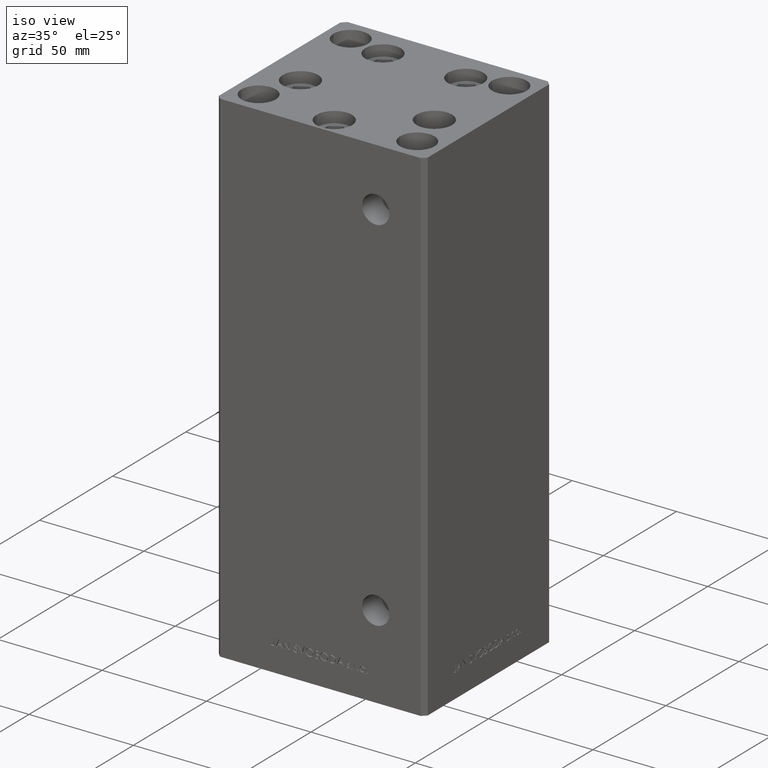
[diagram: clean part render]
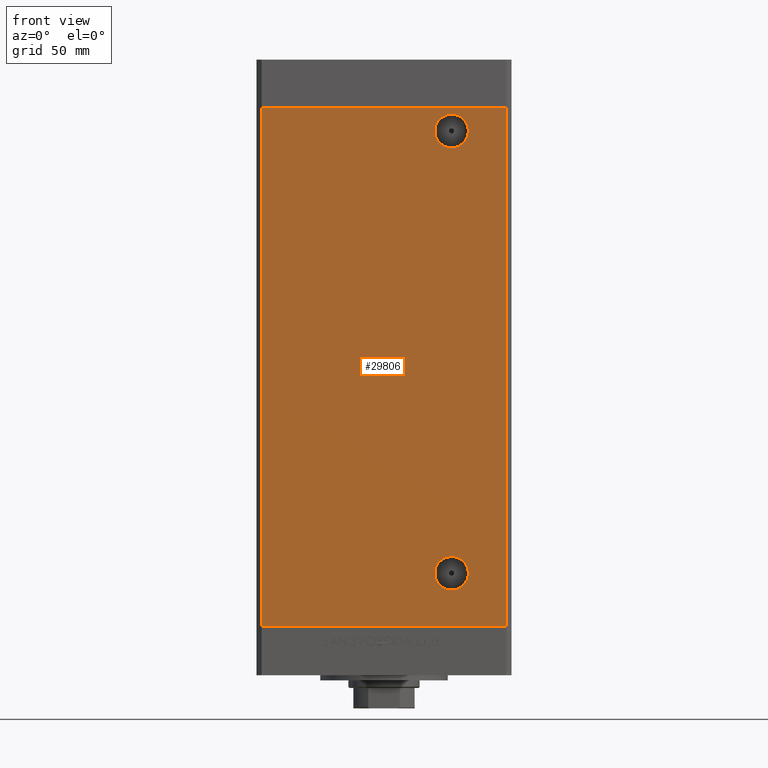
[diagram: tour spotlight — one face highlighted and labeled with its STEP entity id]
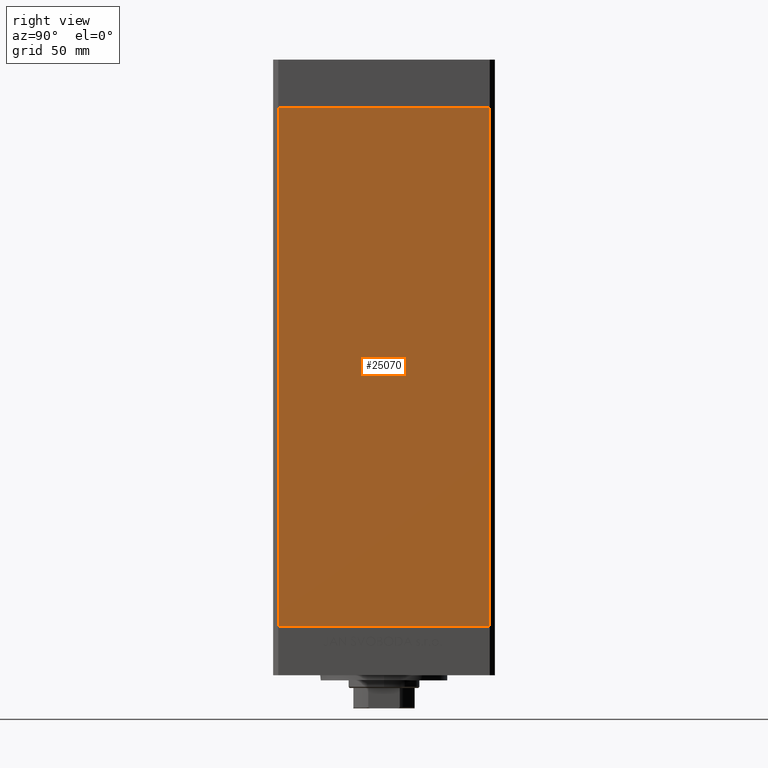
[diagram: tour spotlight — one face highlighted and labeled with its STEP entity id]
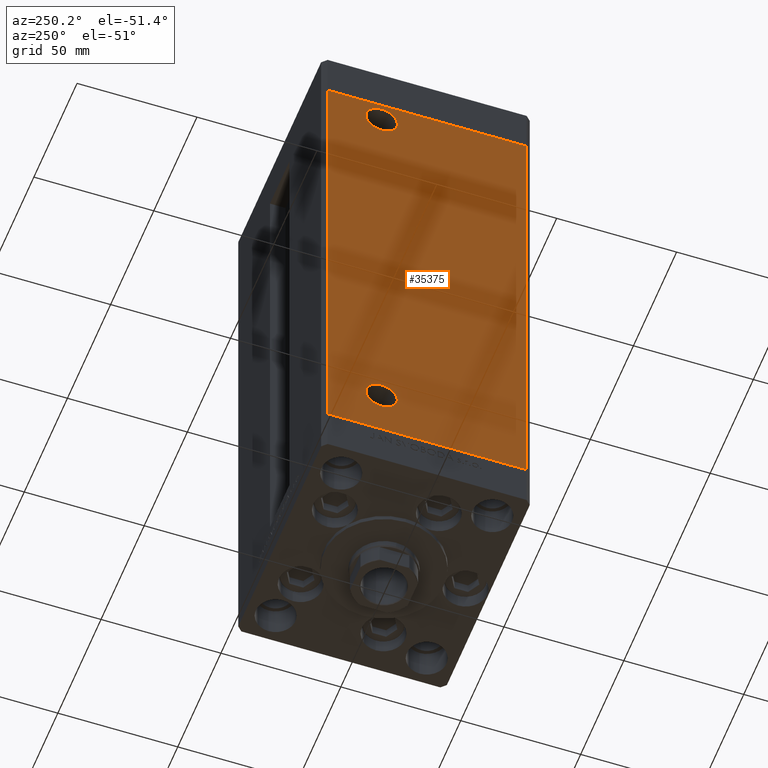
[diagram: tour spotlight — one face highlighted and labeled with its STEP entity id]
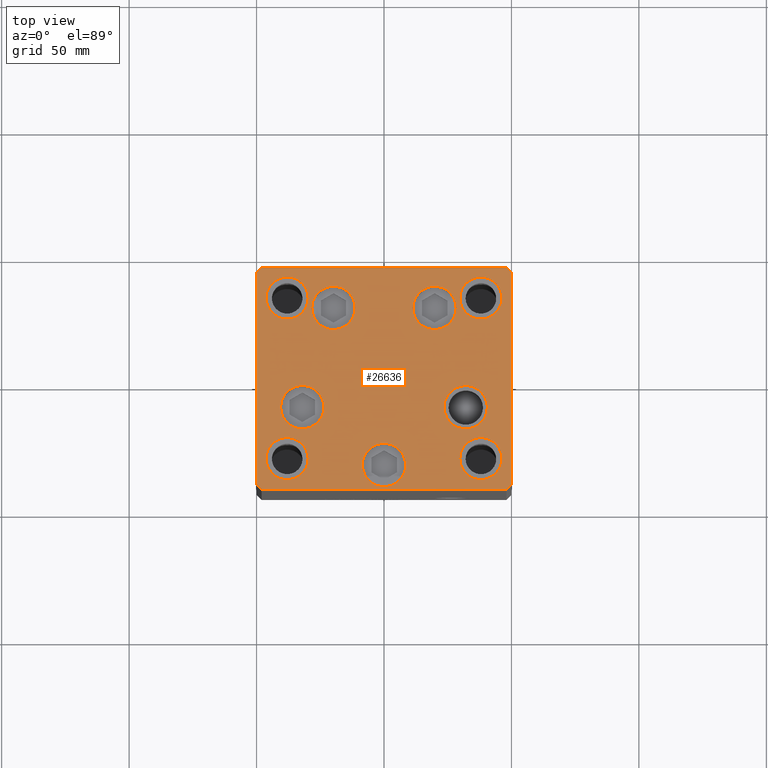
[diagram: tour spotlight — one face highlighted and labeled with its STEP entity id]
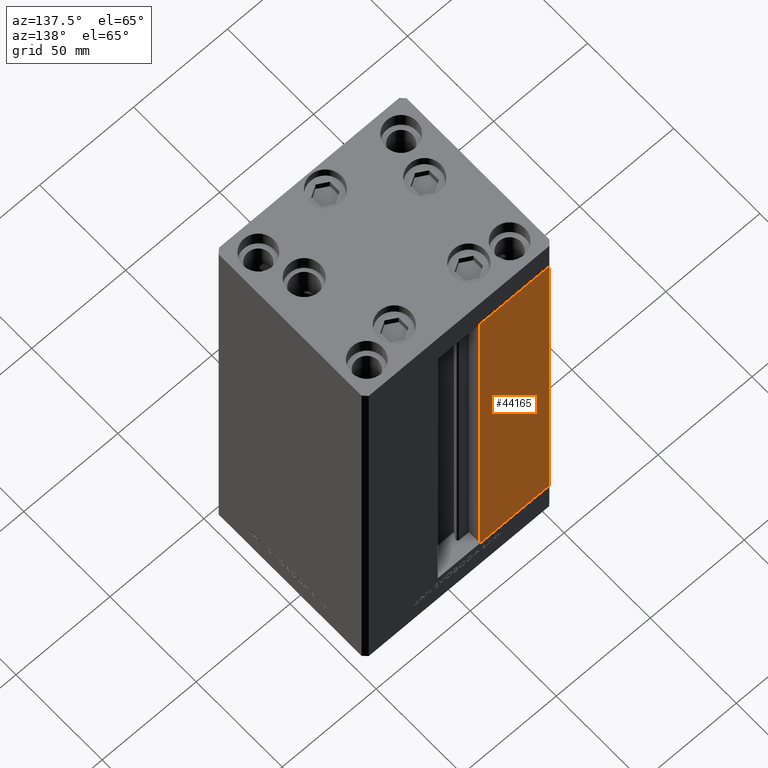
[diagram: tour spotlight — one face highlighted and labeled with its STEP entity id]
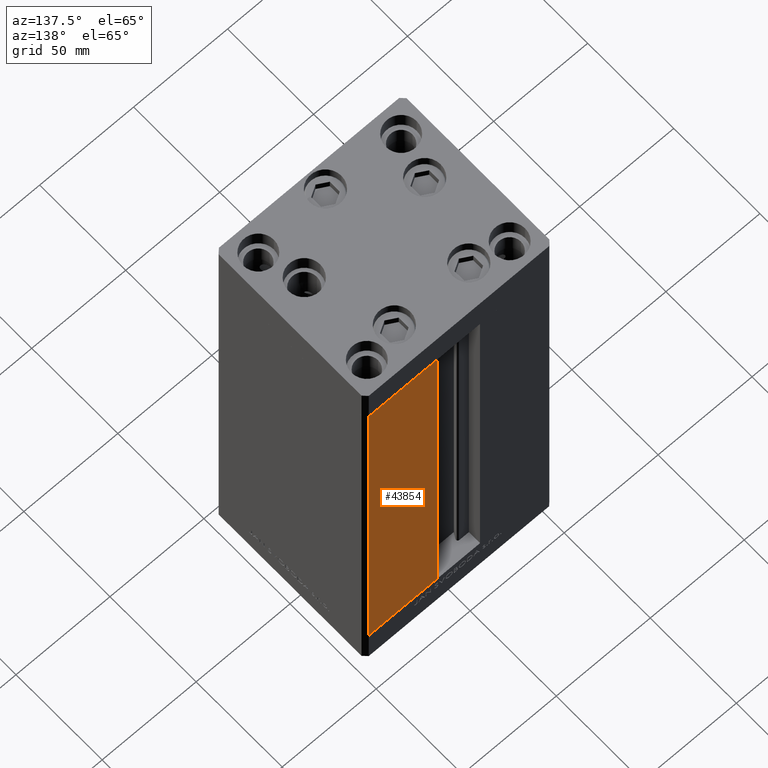
[diagram: tour spotlight — one face highlighted and labeled with its STEP entity id]
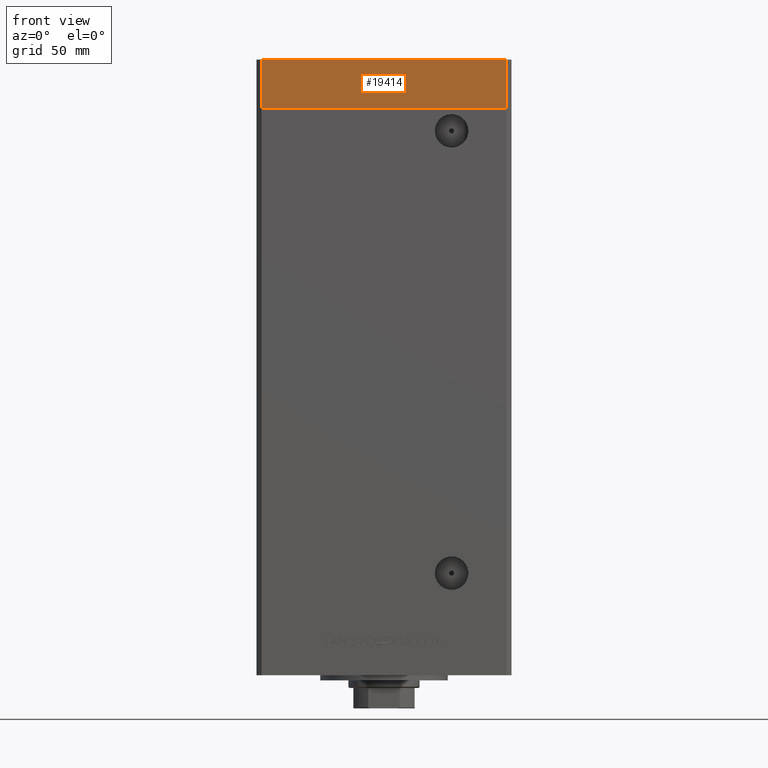
[diagram: tour spotlight — one face highlighted and labeled with its STEP entity id]
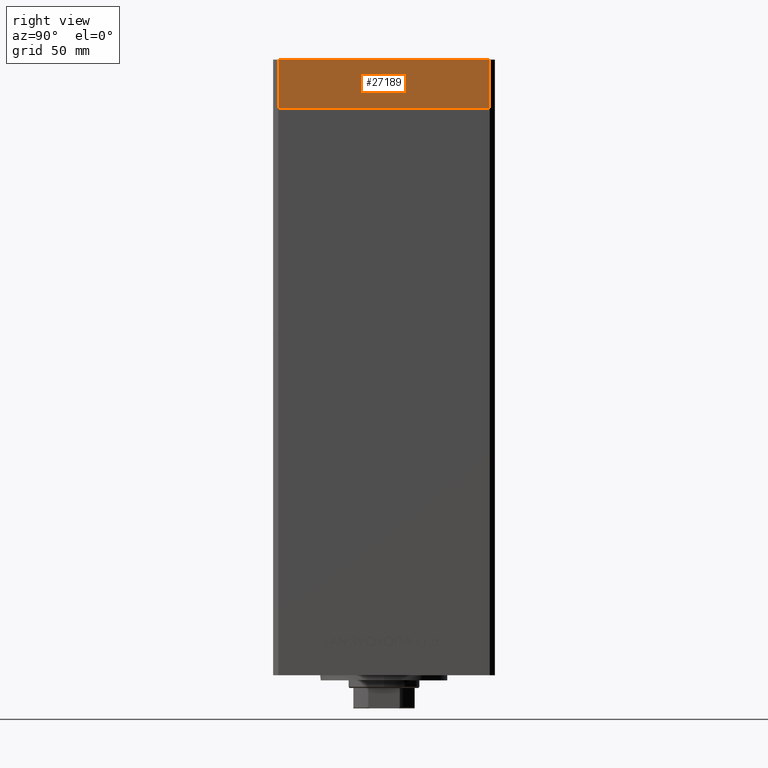
[diagram: tour spotlight — one face highlighted and labeled with its STEP entity id]
A machine part: a face-by-face anatomy tour. The part has 1186 B-rep faces; the first image is the clean iso view, then the 8 largest visible faces are spotlighted one at a time (largest first), each with its STEP entity span.

Face 1 — front view, entity #29806. In plain terms, the highlighted planar face has unit normal (0, 1, 0).
Definition (entity closure, byte-faithful):
#1952 = CIRCLE ( 'NONE', #22169, 6.579999999999995630 ) ;
#2857 = LINE ( 'NONE', #29941, #37164 ) ;
#3378 = EDGE_CURVE ( 'NONE', #29456, #10878, #2857, .T. ) ;
#5323 = CIRCLE ( 'NONE', #27140, 6.580000000000002736 ) ;
#5459 = CARTESIAN_POINT ( 'NONE',  ( 26.49999999999998934, -43.50000000000000000, 20.99999999999998934 ) ) ;
#5644 = CARTESIAN_POINT ( 'NONE',  ( -47.99999999999998579, -43.50000000000000000, 0.000000000000000000 ) ) ;
#7381 = CARTESIAN_POINT ( 'NONE',  ( 47.99999999999998579, -43.50000000000000000, 203.5000000000000000 ) ) ;
#8064 = ORIENTED_EDGE ( 'NONE', *, *, #38246, .F. ) ;
#9224 = DIRECTION ( 'NONE',  ( 1.000000000000000000, 0.000000000000000000, 0.000000000000000000 ) ) ;
#9507 = AXIS2_PLACEMENT_3D ( 'NONE', #41840, #41594, #15515 ) ;
#9987 = DIRECTION ( 'NONE',  ( -0.000000000000000000, 1.000000000000000000, -0.000000000000000000 ) ) ;
#10766 = VECTOR ( 'NONE', #9224, 1000.000000000000000 ) ;
#10878 = VERTEX_POINT ( 'NONE', #25746 ) ;
#10966 = DIRECTION ( 'NONE',  ( 0.000000000000000000, 0.000000000000000000, -1.000000000000000000 ) ) ;
#10977 = AXIS2_PLACEMENT_3D ( 'NONE', #33752, #9987, #14528 ) ;
#12039 = CARTESIAN_POINT ( 'NONE',  ( 47.99999999999998579, -43.50000000000000000, 203.5000000000000000 ) ) ;
#14528 = DIRECTION ( 'NONE',  ( 0.000000000000000000, 0.000000000000000000, -1.000000000000000000 ) ) ;
#14543 = EDGE_CURVE ( 'NONE', #35911, #35534, #1952, .T. ) ;
#15515 = DIRECTION ( 'NONE',  ( 0.000000000000000000, 0.000000000000000000, -1.000000000000000000 ) ) ;
#15907 = EDGE_CURVE ( 'NONE', #29456, #21454, #21633, .T. ) ;
#16142 = PLANE ( 'NONE',  #47490 ) ;
#16879 = DIRECTION ( 'NONE',  ( 0.000000000000000000, -1.000000000000000000, 0.000000000000000000 ) ) ;
#20695 = FACE_BOUND ( 'NONE', #28318, .T. ) ;
#20716 = ORIENTED_EDGE ( 'NONE', *, *, #15907, .F. ) ;
#21454 = VERTEX_POINT ( 'NONE', #12039 ) ;
#21633 = LINE ( 'NONE', #25174, #10766 ) ;
#21657 = EDGE_CURVE ( 'NONE', #40360, #33367, #43331, .T. ) ;
#22169 = AXIS2_PLACEMENT_3D ( 'NONE', #5459, #16879, #39896 ) ;
#22527 = CARTESIAN_POINT ( 'NONE',  ( 26.49999999999996803, -43.50000000000000000, 187.9199999999999875 ) ) ;
#22835 = DIRECTION ( 'NONE',  ( -0.000000000000000000, -0.000000000000000000, -1.000000000000000000 ) ) ;
#23337 = LINE ( 'NONE', #7381, #37046 ) ;
#23488 = FACE_BOUND ( 'NONE', #49323, .T. ) ;
#25174 = CARTESIAN_POINT ( 'NONE',  ( -47.99999999999998579, -43.50000000000000000, 203.5000000000000000 ) ) ;
#25634 = DIRECTION ( 'NONE',  ( 1.000000000000000000, 0.000000000000000000, 0.000000000000000000 ) ) ;
#25746 = CARTESIAN_POINT ( 'NONE',  ( -47.99999999999998579, -43.50000000000000000, 0.000000000000000000 ) ) ;
#25918 = DIRECTION ( 'NONE',  ( -0.000000000000000000, 1.000000000000000000, -0.000000000000000000 ) ) ;
#26750 = CARTESIAN_POINT ( 'NONE',  ( 26.49999999999998934, -43.50000000000000000, 14.41999999999999460 ) ) ;
#27140 = AXIS2_PLACEMENT_3D ( 'NONE', #38045, #25918, #10966 ) ;
#28318 = EDGE_LOOP ( 'NONE', ( #38945, #43008 ) ) ;
#29456 = VERTEX_POINT ( 'NONE', #42529 ) ;
#29806 = ADVANCED_FACE ( 'NONE', ( #20695, #39665, #23488 ), #16142, .F. ) ;
#29941 = CARTESIAN_POINT ( 'NONE',  ( -47.99999999999998579, -43.50000000000000000, 203.5000000000000000 ) ) ;
#31190 = EDGE_CURVE ( 'NONE', #33367, #40360, #5323, .T. ) ;
#33367 = VERTEX_POINT ( 'NONE', #22527 ) ;
#33621 = EDGE_LOOP ( 'NONE', ( #35366, #8064, #20716, #49886 ) ) ;
#33752 = CARTESIAN_POINT ( 'NONE',  ( 26.49999999999996803, -43.50000000000000000, 194.4999999999999716 ) ) ;
#35024 = CARTESIAN_POINT ( 'NONE',  ( 47.99999999999998579, -43.50000000000000000, 0.000000000000000000 ) ) ;
#35366 = ORIENTED_EDGE ( 'NONE', *, *, #39333, .T. ) ;
#35534 = VERTEX_POINT ( 'NONE', #26750 ) ;
#35855 = CARTESIAN_POINT ( 'NONE',  ( -47.99999999999998579, -43.50000000000000000, 203.5000000000000000 ) ) ;
#35911 = VERTEX_POINT ( 'NONE', #36214 ) ;
#36214 = CARTESIAN_POINT ( 'NONE',  ( 26.49999999999998934, -43.50000000000000000, 27.57999999999998764 ) ) ;
#37046 = VECTOR ( 'NONE', #22835, 1000.000000000000000 ) ;
#37164 = VECTOR ( 'NONE', #41593, 1000.000000000000000 ) ;
#38045 = CARTESIAN_POINT ( 'NONE',  ( 26.49999999999996803, -43.50000000000000000, 194.4999999999999716 ) ) ;
#38246 = EDGE_CURVE ( 'NONE', #21454, #39899, #23337, .T. ) ;
#38945 = ORIENTED_EDGE ( 'NONE', *, *, #40691, .F. ) ;
#39333 = EDGE_CURVE ( 'NONE', #10878, #39899, #40331, .T. ) ;
#39665 = FACE_OUTER_BOUND ( 'NONE', #33621, .T. ) ;
#39896 = DIRECTION ( 'NONE',  ( 0.000000000000000000, 0.000000000000000000, -1.000000000000000000 ) ) ;
#39899 = VERTEX_POINT ( 'NONE', #35024 ) ;
#40331 = LINE ( 'NONE', #5644, #41968 ) ;
#40360 = VERTEX_POINT ( 'NONE', #46445 ) ;
#40691 = EDGE_CURVE ( 'NONE', #35534, #35911, #44265, .T. ) ;
#41593 = DIRECTION ( 'NONE',  ( -0.000000000000000000, -0.000000000000000000, -1.000000000000000000 ) ) ;
#41594 = DIRECTION ( 'NONE',  ( 0.000000000000000000, -1.000000000000000000, 0.000000000000000000 ) ) ;
#41840 = CARTESIAN_POINT ( 'NONE',  ( 26.49999999999998934, -43.50000000000000000, 20.99999999999998934 ) ) ;
#41968 = VECTOR ( 'NONE', #25634, 1000.000000000000000 ) ;
#42529 = CARTESIAN_POINT ( 'NONE',  ( -47.99999999999998579, -43.50000000000000000, 203.5000000000000000 ) ) ;
#43008 = ORIENTED_EDGE ( 'NONE', *, *, #14543, .F. ) ;
#43090 = ORIENTED_EDGE ( 'NONE', *, *, #31190, .T. ) ;
#43331 = CIRCLE ( 'NONE', #10977, 6.580000000000002736 ) ;
#43463 = DIRECTION ( 'NONE',  ( 0.000000000000000000, -0.000000000000000000, 1.000000000000000000 ) ) ;
#44265 = CIRCLE ( 'NONE', #9507, 6.579999999999995630 ) ;
#44305 = ORIENTED_EDGE ( 'NONE', *, *, #21657, .T. ) ;
#46445 = CARTESIAN_POINT ( 'NONE',  ( 26.49999999999996803, -43.50000000000000000, 201.0799999999999841 ) ) ;
#47270 = DIRECTION ( 'NONE',  ( 0.000000000000000000, 1.000000000000000000, 0.000000000000000000 ) ) ;
#47490 = AXIS2_PLACEMENT_3D ( 'NONE', #35855, #47270, #43463 ) ;
#49323 = EDGE_LOOP ( 'NONE', ( #43090, #44305 ) ) ;
#49886 = ORIENTED_EDGE ( 'NONE', *, *, #3378, .T. ) ;

Face 2 — right view, entity #25070. In plain terms, the highlighted planar face has unit normal (1, -0, 0).
Definition (entity closure, byte-faithful):
#985 = CARTESIAN_POINT ( 'NONE',  ( 49.99999999999998579, -41.49999999999999289, 0.000000000000000000 ) ) ;
#1571 = FACE_OUTER_BOUND ( 'NONE', #24135, .T. ) ;
#2645 = VERTEX_POINT ( 'NONE', #985 ) ;
#4922 = CARTESIAN_POINT ( 'NONE',  ( 50.00000000000001421, 41.49999999999999289, 203.5000000000000000 ) ) ;
#5270 = VERTEX_POINT ( 'NONE', #34218 ) ;
#5619 = CARTESIAN_POINT ( 'NONE',  ( 50.00000000000001421, 41.49999999999999289, 203.5000000000000000 ) ) ;
#6123 = DIRECTION ( 'NONE',  ( 3.344045254895050973E-16, 1.000000000000000000, 0.000000000000000000 ) ) ;
#8189 = LINE ( 'NONE', #39057, #48809 ) ;
#8359 = LINE ( 'NONE', #42285, #27461 ) ;
#8929 = DIRECTION ( 'NONE',  ( -3.344045254895050973E-16, -1.000000000000000000, 0.000000000000000000 ) ) ;
#12391 = VERTEX_POINT ( 'NONE', #48547 ) ;
#14474 = DIRECTION ( 'NONE',  ( 1.000000000000000000, -3.344045254895050973E-16, 0.000000000000000000 ) ) ;
#14539 = ORIENTED_EDGE ( 'NONE', *, *, #45054, .T. ) ;
#15390 = CARTESIAN_POINT ( 'NONE',  ( 50.00000000000001421, 41.49999999999999289, 0.000000000000000000 ) ) ;
#16820 = VECTOR ( 'NONE', #39508, 1000.000000000000000 ) ;
#16993 = CARTESIAN_POINT ( 'NONE',  ( 49.99999999999998579, -41.49999999999999289, 203.5000000000000000 ) ) ;
#17121 = EDGE_CURVE ( 'NONE', #43928, #2645, #8189, .T. ) ;
#23952 = EDGE_CURVE ( 'NONE', #5270, #43928, #24181, .T. ) ;
#24135 = EDGE_LOOP ( 'NONE', ( #40884, #49075, #14539, #34035 ) ) ;
#24181 = LINE ( 'NONE', #4922, #31242 ) ;
#25070 = ADVANCED_FACE ( 'NONE', ( #1571 ), #40304, .T. ) ;
#26894 = EDGE_CURVE ( 'NONE', #12391, #2645, #43810, .T. ) ;
#27461 = VECTOR ( 'NONE', #38476, 1000.000000000000000 ) ;
#29662 = AXIS2_PLACEMENT_3D ( 'NONE', #5619, #14474, #6123 ) ;
#31242 = VECTOR ( 'NONE', #36046, 1000.000000000000000 ) ;
#34035 = ORIENTED_EDGE ( 'NONE', *, *, #26894, .T. ) ;
#34218 = CARTESIAN_POINT ( 'NONE',  ( 50.00000000000001421, 41.49999999999999289, 203.5000000000000000 ) ) ;
#36046 = DIRECTION ( 'NONE',  ( -0.000000000000000000, -0.000000000000000000, -1.000000000000000000 ) ) ;
#38476 = DIRECTION ( 'NONE',  ( -3.344045254895050973E-16, -1.000000000000000000, 0.000000000000000000 ) ) ;
#39057 = CARTESIAN_POINT ( 'NONE',  ( 50.00000000000001421, 41.49999999999999289, 0.000000000000000000 ) ) ;
#39508 = DIRECTION ( 'NONE',  ( -0.000000000000000000, -0.000000000000000000, -1.000000000000000000 ) ) ;
#40304 = PLANE ( 'NONE',  #29662 ) ;
#40884 = ORIENTED_EDGE ( 'NONE', *, *, #17121, .F. ) ;
#42285 = CARTESIAN_POINT ( 'NONE',  ( 50.00000000000001421, 41.49999999999999289, 203.5000000000000000 ) ) ;
#43810 = LINE ( 'NONE', #16993, #16820 ) ;
#43928 = VERTEX_POINT ( 'NONE', #15390 ) ;
#45054 = EDGE_CURVE ( 'NONE', #5270, #12391, #8359, .T. ) ;
#48547 = CARTESIAN_POINT ( 'NONE',  ( 49.99999999999998579, -41.49999999999999289, 203.5000000000000000 ) ) ;
#48809 = VECTOR ( 'NONE', #8929, 1000.000000000000000 ) ;
#49075 = ORIENTED_EDGE ( 'NONE', *, *, #23952, .F. ) ;

Face 3 — auxiliary view, entity #35375. In plain terms, the highlighted planar face has unit normal (1, 0, 0).
Definition (entity closure, byte-faithful):
#434 = VERTEX_POINT ( 'NONE', #25605 ) ;
#787 = DIRECTION ( 'NONE',  ( -1.000000000000000000, -2.275047181608927644E-16, 0.000000000000000000 ) ) ;
#1224 = EDGE_CURVE ( 'NONE', #17369, #434, #41140, .T. ) ;
#1948 = AXIS2_PLACEMENT_3D ( 'NONE', #11796, #18224, #19155 ) ;
#2822 = ORIENTED_EDGE ( 'NONE', *, *, #22550, .F. ) ;
#2962 = DIRECTION ( 'NONE',  ( -3.344045254895050973E-16, 1.000000000000000000, 0.000000000000000000 ) ) ;
#4572 = CARTESIAN_POINT ( 'NONE',  ( -50.00000000000000711, 18.99999999999997158, 20.99999999999998934 ) ) ;
#5452 = ORIENTED_EDGE ( 'NONE', *, *, #1224, .F. ) ;
#5498 = ORIENTED_EDGE ( 'NONE', *, *, #17619, .F. ) ;
#5920 = VERTEX_POINT ( 'NONE', #45743 ) ;
#6021 = DIRECTION ( 'NONE',  ( 1.000000000000000000, 3.344045254895050973E-16, -0.000000000000000000 ) ) ;
#6924 = VERTEX_POINT ( 'NONE', #7951 ) ;
#7126 = CARTESIAN_POINT ( 'NONE',  ( -50.00000000000000711, 12.41999999999996973, 20.99999999999998934 ) ) ;
#7685 = DIRECTION ( 'NONE',  ( -1.000000000000000000, -2.275047181608927644E-16, 0.000000000000000000 ) ) ;
#7951 = CARTESIAN_POINT ( 'NONE',  ( -49.99999999999998579, -41.49999999999999289, 0.000000000000000000 ) ) ;
#9262 = CARTESIAN_POINT ( 'NONE',  ( -49.99999999999998579, -41.49999999999999289, 203.5000000000000000 ) ) ;
#9614 = CARTESIAN_POINT ( 'NONE',  ( -50.00000000000000711, 12.41999999999998394, 194.4999999999999716 ) ) ;
#10979 = ORIENTED_EDGE ( 'NONE', *, *, #31134, .F. ) ;
#11488 = DIRECTION ( 'NONE',  ( 0.000000000000000000, -1.000000000000000000, 0.000000000000000000 ) ) ;
#11796 = CARTESIAN_POINT ( 'NONE',  ( -50.00000000000000711, 19.00000000000000000, 194.4999999999999716 ) ) ;
#12207 = EDGE_CURVE ( 'NONE', #39774, #6924, #31088, .T. ) ;
#13535 = AXIS2_PLACEMENT_3D ( 'NONE', #18664, #6021, #2962 ) ;
#14693 = DIRECTION ( 'NONE',  ( -0.000000000000000000, -0.000000000000000000, -1.000000000000000000 ) ) ;
#15621 = ORIENTED_EDGE ( 'NONE', *, *, #22957, .F. ) ;
#16622 = VERTEX_POINT ( 'NONE', #34809 ) ;
#17369 = VERTEX_POINT ( 'NONE', #7126 ) ;
#17619 = EDGE_CURVE ( 'NONE', #37619, #30692, #35872, .T. ) ;
#17682 = FACE_BOUND ( 'NONE', #35836, .T. ) ;
#17955 = CARTESIAN_POINT ( 'NONE',  ( -50.00000000000001421, 41.49999999999999289, 0.000000000000000000 ) ) ;
#18224 = DIRECTION ( 'NONE',  ( -1.000000000000000000, -2.275047181608927644E-16, 0.000000000000000000 ) ) ;
#18497 = LINE ( 'NONE', #49380, #47613 ) ;
#18573 = LINE ( 'NONE', #26164, #32279 ) ;
#18664 = CARTESIAN_POINT ( 'NONE',  ( -50.00000000000001421, 41.49999999999999289, 203.5000000000000000 ) ) ;
#19155 = DIRECTION ( 'NONE',  ( 0.000000000000000000, -1.000000000000000000, 0.000000000000000000 ) ) ;
#22550 = EDGE_CURVE ( 'NONE', #30692, #37619, #40072, .T. ) ;
#22646 = ORIENTED_EDGE ( 'NONE', *, *, #12207, .F. ) ;
#22957 = EDGE_CURVE ( 'NONE', #434, #17369, #35247, .T. ) ;
#23481 = EDGE_CURVE ( 'NONE', #5920, #6924, #25293, .T. ) ;
#24726 = AXIS2_PLACEMENT_3D ( 'NONE', #46167, #7685, #11488 ) ;
#25293 = LINE ( 'NONE', #17955, #43359 ) ;
#25605 = CARTESIAN_POINT ( 'NONE',  ( -50.00000000000000711, 25.57999999999997343, 20.99999999999998934 ) ) ;
#25763 = FACE_BOUND ( 'NONE', #43975, .T. ) ;
#26164 = CARTESIAN_POINT ( 'NONE',  ( -50.00000000000001421, 41.49999999999999289, 203.5000000000000000 ) ) ;
#27289 = DIRECTION ( 'NONE',  ( -0.000000000000000000, -0.000000000000000000, -1.000000000000000000 ) ) ;
#29764 = ORIENTED_EDGE ( 'NONE', *, *, #23481, .T. ) ;
#30692 = VERTEX_POINT ( 'NONE', #31384 ) ;
#30972 = DIRECTION ( 'NONE',  ( -1.000000000000000000, -2.275047181608927644E-16, 0.000000000000000000 ) ) ;
#31088 = LINE ( 'NONE', #34379, #44712 ) ;
#31134 = EDGE_CURVE ( 'NONE', #16622, #39774, #18573, .T. ) ;
#31384 = CARTESIAN_POINT ( 'NONE',  ( -50.00000000000000711, 25.58000000000001606, 194.4999999999999716 ) ) ;
#32070 = ORIENTED_EDGE ( 'NONE', *, *, #43027, .T. ) ;
#32279 = VECTOR ( 'NONE', #41359, 1000.000000000000000 ) ;
#32383 = DIRECTION ( 'NONE',  ( 3.344045254895050973E-16, -1.000000000000000000, 0.000000000000000000 ) ) ;
#34379 = CARTESIAN_POINT ( 'NONE',  ( -49.99999999999998579, -41.49999999999999289, 203.5000000000000000 ) ) ;
#34809 = CARTESIAN_POINT ( 'NONE',  ( -50.00000000000001421, 41.49999999999999289, 203.5000000000000000 ) ) ;
#35247 = CIRCLE ( 'NONE', #46581, 6.580000000000002736 ) ;
#35375 = ADVANCED_FACE ( 'NONE', ( #25763, #17682, #37887 ), #37393, .F. ) ;
#35587 = EDGE_LOOP ( 'NONE', ( #29764, #22646, #10979, #32070 ) ) ;
#35836 = EDGE_LOOP ( 'NONE', ( #5498, #2822 ) ) ;
#35872 = CIRCLE ( 'NONE', #1948, 6.580000000000016058 ) ;
#37393 = PLANE ( 'NONE',  #13535 ) ;
#37619 = VERTEX_POINT ( 'NONE', #9614 ) ;
#37887 = FACE_OUTER_BOUND ( 'NONE', #35587, .T. ) ;
#38065 = DIRECTION ( 'NONE',  ( 0.000000000000000000, -1.000000000000000000, 0.000000000000000000 ) ) ;
#39774 = VERTEX_POINT ( 'NONE', #9262 ) ;
#40072 = CIRCLE ( 'NONE', #24726, 6.580000000000016058 ) ;
#41140 = CIRCLE ( 'NONE', #49237, 6.580000000000002736 ) ;
#41359 = DIRECTION ( 'NONE',  ( 3.344045254895050973E-16, -1.000000000000000000, 0.000000000000000000 ) ) ;
#43027 = EDGE_CURVE ( 'NONE', #16622, #5920, #18497, .T. ) ;
#43359 = VECTOR ( 'NONE', #32383, 1000.000000000000000 ) ;
#43808 = DIRECTION ( 'NONE',  ( 0.000000000000000000, -1.000000000000000000, 0.000000000000000000 ) ) ;
#43975 = EDGE_LOOP ( 'NONE', ( #5452, #15621 ) ) ;
#44712 = VECTOR ( 'NONE', #27289, 1000.000000000000000 ) ;
#45743 = CARTESIAN_POINT ( 'NONE',  ( -50.00000000000001421, 41.49999999999999289, 0.000000000000000000 ) ) ;
#46167 = CARTESIAN_POINT ( 'NONE',  ( -50.00000000000000711, 19.00000000000000000, 194.4999999999999716 ) ) ;
#46172 = CARTESIAN_POINT ( 'NONE',  ( -50.00000000000000711, 18.99999999999997158, 20.99999999999998934 ) ) ;
#46581 = AXIS2_PLACEMENT_3D ( 'NONE', #4572, #787, #43808 ) ;
#47613 = VECTOR ( 'NONE', #14693, 1000.000000000000000 ) ;
#49237 = AXIS2_PLACEMENT_3D ( 'NONE', #46172, #30972, #38065 ) ;
#49380 = CARTESIAN_POINT ( 'NONE',  ( -50.00000000000001421, 41.49999999999999289, 203.5000000000000000 ) ) ;

Face 4 — top view, entity #26636. In plain terms, the highlighted planar face has unit normal (0, 0, 1).
Definition (entity closure, byte-faithful):
#89 = ORIENTED_EDGE ( 'NONE', *, *, #24463, .T. ) ;
#204 = DIRECTION ( 'NONE',  ( 1.000000000000000000, 0.000000000000000000, 0.000000000000000000 ) ) ;
#471 = CARTESIAN_POINT ( 'NONE',  ( 38.00000000000000000, -31.49999999999999289, 0.000000000000000000 ) ) ;
#689 = CARTESIAN_POINT ( 'NONE',  ( 32.05550741379015278, -11.33333333333333037, 0.000000000000000000 ) ) ;
#873 = CARTESIAN_POINT ( 'NONE',  ( -40.55550741379015278, -11.33333333333333925, 0.000000000000000000 ) ) ;
#945 = EDGE_LOOP ( 'NONE', ( #20599, #36353, #89, #25992, #16347, #21945, #48780, #12317 ) ) ;
#949 = CARTESIAN_POINT ( 'NONE',  ( 32.05550741379015278, -11.33333333333333037, 0.000000000000000000 ) ) ;
#1107 = CARTESIAN_POINT ( 'NONE',  ( 19.82068048781373193, 27.62500000000000000, 0.000000000000000000 ) ) ;
#1142 = CARTESIAN_POINT ( 'NONE',  ( 38.00000000000000000, -31.49999999999999289, 0.000000000000000000 ) ) ;
#1376 = ORIENTED_EDGE ( 'NONE', *, *, #7280, .T. ) ;
#1661 = ORIENTED_EDGE ( 'NONE', *, *, #40866, .T. ) ;
#1905 = DIRECTION ( 'NONE',  ( 0.000000000000000000, -0.000000000000000000, -1.000000000000000000 ) ) ;
#1908 = EDGE_CURVE ( 'NONE', #6175, #49509, #14591, .T. ) ;
#2118 = CARTESIAN_POINT ( 'NONE',  ( 40.55550741379014568, -11.33333333333332860, 0.000000000000000000 ) ) ;
#2397 = AXIS2_PLACEMENT_3D ( 'NONE', #39277, #7405, #7657 ) ;
#2442 = EDGE_CURVE ( 'NONE', #49509, #6175, #46139, .T. ) ;
#2453 = LINE ( 'NONE', #49278, #45382 ) ;
#2497 = AXIS2_PLACEMENT_3D ( 'NONE', #35215, #27634, #8156 ) ;
#2615 = VECTOR ( 'NONE', #204, 1000.000000000000000 ) ;
#2914 = ORIENTED_EDGE ( 'NONE', *, *, #27635, .T. ) ;
#3130 = FACE_BOUND ( 'NONE', #22216, .T. ) ;
#3372 = EDGE_LOOP ( 'NONE', ( #40578, #45040 ) ) ;
#3381 = FACE_OUTER_BOUND ( 'NONE', #945, .T. ) ;
#3426 = VERTEX_POINT ( 'NONE', #26888 ) ;
#3439 = EDGE_CURVE ( 'NONE', #36841, #7889, #46053, .T. ) ;
#4401 = CARTESIAN_POINT ( 'NONE',  ( -11.32068048781373726, 27.62499999999999645, 0.000000000000000000 ) ) ;
#4418 = ORIENTED_EDGE ( 'NONE', *, *, #16733, .F. ) ;
#4478 = DIRECTION ( 'NONE',  ( 1.000000000000000000, 0.000000000000000000, 0.000000000000000000 ) ) ;
#4526 = EDGE_LOOP ( 'NONE', ( #22142, #2914 ) ) ;
#4684 = ORIENTED_EDGE ( 'NONE', *, *, #38603, .F. ) ;
#4964 = VERTEX_POINT ( 'NONE', #42126 ) ;
#5025 = DIRECTION ( 'NONE',  ( 0.000000000000000000, 0.000000000000000000, 1.000000000000000000 ) ) ;
#5189 = DIRECTION ( 'NONE',  ( 0.000000000000000000, 0.000000000000000000, 1.000000000000000000 ) ) ;
#5246 = DIRECTION ( 'NONE',  ( 1.000000000000000000, 0.000000000000000000, 0.000000000000000000 ) ) ;
#5652 = VERTEX_POINT ( 'NONE', #29623 ) ;
#5750 = DIRECTION ( 'NONE',  ( -1.003213576468515193E-15, 1.000000000000000000, 0.000000000000000000 ) ) ;
#5930 = AXIS2_PLACEMENT_3D ( 'NONE', #1142, #5189, #20401 ) ;
#6175 = VERTEX_POINT ( 'NONE', #32688 ) ;
#6451 = FACE_BOUND ( 'NONE', #17869, .T. ) ;
#6495 = ORIENTED_EDGE ( 'NONE', *, *, #8397, .T. ) ;
#6605 = EDGE_CURVE ( 'NONE', #29401, #5652, #11055, .T. ) ;
#6922 = CARTESIAN_POINT ( 'NONE',  ( -8.499999999999996447, -34.00000000000000000, 0.000000000000000000 ) ) ;
#7096 = AXIS2_PLACEMENT_3D ( 'NONE', #26942, #42638, #42392 ) ;
#7263 = DIRECTION ( 'NONE',  ( 8.360113137237628665E-17, -1.000000000000000000, 0.000000000000000000 ) ) ;
#7280 = EDGE_CURVE ( 'NONE', #45912, #32584, #8184, .T. ) ;
#7405 = DIRECTION ( 'NONE',  ( 0.000000000000000000, -0.000000000000000000, -1.000000000000000000 ) ) ;
#7632 = CARTESIAN_POINT ( 'NONE',  ( -37.99999999999999289, -31.50000000000000000, 0.000000000000000000 ) ) ;
#7657 = DIRECTION ( 'NONE',  ( 1.000000000000000000, 0.000000000000000000, 0.000000000000000000 ) ) ;
#7824 = DIRECTION ( 'NONE',  ( 1.000000000000000000, 0.000000000000000000, 0.000000000000000000 ) ) ;
#7889 = VERTEX_POINT ( 'NONE', #4401 ) ;
#8156 = DIRECTION ( 'NONE',  ( 1.000000000000000000, 0.000000000000000000, 0.000000000000000000 ) ) ;
#8184 = CIRCLE ( 'NONE', #49423, 8.500000000000000000 ) ;
#8218 = VERTEX_POINT ( 'NONE', #16263 ) ;
#8297 = EDGE_LOOP ( 'NONE', ( #4684, #4418 ) ) ;
#8397 = EDGE_CURVE ( 'NONE', #48115, #41199, #42141, .T. ) ;
#8799 = CARTESIAN_POINT ( 'NONE',  ( 46.25000000000000000, -31.49999999999999289, 0.000000000000000000 ) ) ;
#9062 = DIRECTION ( 'NONE',  ( 1.000000000000000000, 0.000000000000000000, 0.000000000000000000 ) ) ;
#9204 = CARTESIAN_POINT ( 'NONE',  ( 47.99999999999999289, -43.50000000000001421, 0.000000000000000000 ) ) ;
#9815 = EDGE_CURVE ( 'NONE', #37034, #40018, #26785, .T. ) ;
#9932 = EDGE_CURVE ( 'NONE', #23921, #45220, #28483, .T. ) ;
#10149 = DIRECTION ( 'NONE',  ( 0.000000000000000000, -0.000000000000000000, -1.000000000000000000 ) ) ;
#10439 = ORIENTED_EDGE ( 'NONE', *, *, #2442, .F. ) ;
#10501 = PLANE ( 'NONE',  #15179 ) ;
#10740 = DIRECTION ( 'NONE',  ( -0.000000000000000000, 0.000000000000000000, 1.000000000000000000 ) ) ;
#10968 = LINE ( 'NONE', #15017, #49560 ) ;
#10985 = FACE_BOUND ( 'NONE', #8297, .T. ) ;
#11055 = LINE ( 'NONE', #15620, #13837 ) ;
#11146 = DIRECTION ( 'NONE',  ( -0.7071067811865463515, -0.7071067811865487940, 0.000000000000000000 ) ) ;
#11180 = DIRECTION ( 'NONE',  ( 0.000000000000000000, 0.000000000000000000, 1.000000000000000000 ) ) ;
#12317 = ORIENTED_EDGE ( 'NONE', *, *, #6605, .T. ) ;
#12420 = CARTESIAN_POINT ( 'NONE',  ( -29.75000000000000000, 31.50000000000000000, 0.000000000000000000 ) ) ;
#12482 = CIRCLE ( 'NONE', #24602, 8.500000000000000000 ) ;
#12938 = CARTESIAN_POINT ( 'NONE',  ( 47.99999999999990763, 43.50000000000000000, 0.000000000000000000 ) ) ;
#13067 = AXIS2_PLACEMENT_3D ( 'NONE', #44321, #10149, #48395 ) ;
#13206 = VERTEX_POINT ( 'NONE', #48868 ) ;
#13329 = EDGE_CURVE ( 'NONE', #49266, #20321, #49636, .T. ) ;
#13334 = EDGE_LOOP ( 'NONE', ( #6495, #1661 ) ) ;
#13687 = CIRCLE ( 'NONE', #32172, 8.250000000000000000 ) ;
#13750 = ORIENTED_EDGE ( 'NONE', *, *, #14859, .T. ) ;
#13837 = VECTOR ( 'NONE', #7263, 1000.000000000000000 ) ;
#14591 = CIRCLE ( 'NONE', #41304, 8.250000000000000000 ) ;
#14789 = FACE_BOUND ( 'NONE', #13334, .T. ) ;
#14859 = EDGE_CURVE ( 'NONE', #32584, #45912, #12482, .T. ) ;
#15017 = CARTESIAN_POINT ( 'NONE',  ( -50.00000000000000000, -41.50000000000000000, 0.000000000000000000 ) ) ;
#15179 = AXIS2_PLACEMENT_3D ( 'NONE', #33524, #10740, #37571 ) ;
#15194 = CARTESIAN_POINT ( 'NONE',  ( -50.00000000000000711, 41.49999999999995026, 0.000000000000000000 ) ) ;
#15620 = CARTESIAN_POINT ( 'NONE',  ( -50.00000000000000711, 41.49999999999995026, 0.000000000000000000 ) ) ;
#16042 = EDGE_CURVE ( 'NONE', #5652, #37034, #10968, .T. ) ;
#16263 = CARTESIAN_POINT ( 'NONE',  ( 29.74999999999999645, -31.49999999999999289, 0.000000000000000000 ) ) ;
#16310 = DIRECTION ( 'NONE',  ( 1.000000000000000000, 0.000000000000000000, 0.000000000000000000 ) ) ;
#16347 = ORIENTED_EDGE ( 'NONE', *, *, #49519, .T. ) ;
#16715 = CARTESIAN_POINT ( 'NONE',  ( 47.99999999999999289, -43.50000000000001421, 0.000000000000000000 ) ) ;
#16733 = EDGE_CURVE ( 'NONE', #8218, #41967, #27760, .T. ) ;
#16763 = CARTESIAN_POINT ( 'NONE',  ( -32.05550741379015278, -11.33333333333333925, 0.000000000000000000 ) ) ;
#16973 = CARTESIAN_POINT ( 'NONE',  ( 46.25000000000000000, 31.49999999999999289, 0.000000000000000000 ) ) ;
#17074 = CIRCLE ( 'NONE', #35663, 8.500000000000000000 ) ;
#17869 = EDGE_LOOP ( 'NONE', ( #13750, #1376 ) ) ;
#18302 = DIRECTION ( 'NONE',  ( 1.000000000000000000, 0.000000000000000000, 0.000000000000000000 ) ) ;
#18625 = CARTESIAN_POINT ( 'NONE',  ( -23.55550741379015278, -11.33333333333333748, 0.000000000000000000 ) ) ;
#18845 = FACE_BOUND ( 'NONE', #3372, .T. ) ;
#19704 = CARTESIAN_POINT ( 'NONE',  ( -47.99999999999999289, -43.50000000000001421, 0.000000000000000000 ) ) ;
#19742 = DIRECTION ( 'NONE',  ( 0.000000000000000000, 0.000000000000000000, 1.000000000000000000 ) ) ;
#19875 = CARTESIAN_POINT ( 'NONE',  ( 4.163799117101000559E-15, -34.00000000000000000, 0.000000000000000000 ) ) ;
#19978 = EDGE_CURVE ( 'NONE', #24464, #42276, #40007, .T. ) ;
#20118 = CIRCLE ( 'NONE', #29780, 8.250000000000000000 ) ;
#20321 = VERTEX_POINT ( 'NONE', #25466 ) ;
#20401 = DIRECTION ( 'NONE',  ( 1.000000000000000000, 0.000000000000000000, 0.000000000000000000 ) ) ;
#20599 = ORIENTED_EDGE ( 'NONE', *, *, #16042, .T. ) ;
#20733 = CARTESIAN_POINT ( 'NONE',  ( 38.00000000000000000, 31.49999999999999289, 0.000000000000000000 ) ) ;
#20822 = AXIS2_PLACEMENT_3D ( 'NONE', #689, #28023, #4478 ) ;
#20866 = AXIS2_PLACEMENT_3D ( 'NONE', #25450, #1905, #28497 ) ;
#21020 = LINE ( 'NONE', #24802, #26776 ) ;
#21588 = VECTOR ( 'NONE', #28349, 1000.000000000000000 ) ;
#21681 = DIRECTION ( 'NONE',  ( 0.000000000000000000, 0.000000000000000000, 1.000000000000000000 ) ) ;
#21945 = ORIENTED_EDGE ( 'NONE', *, *, #26773, .T. ) ;
#22142 = ORIENTED_EDGE ( 'NONE', *, *, #3439, .T. ) ;
#22216 = EDGE_LOOP ( 'NONE', ( #48923, #38305 ) ) ;
#22422 = EDGE_LOOP ( 'NONE', ( #37094, #48500 ) ) ;
#22742 = DIRECTION ( 'NONE',  ( 1.000000000000000000, 0.000000000000000000, 0.000000000000000000 ) ) ;
#23921 = VERTEX_POINT ( 'NONE', #2118 ) ;
#24463 = EDGE_CURVE ( 'NONE', #40018, #40406, #36427, .T. ) ;
#24464 = VERTEX_POINT ( 'NONE', #12420 ) ;
#24602 = AXIS2_PLACEMENT_3D ( 'NONE', #1107, #31485, #16310 ) ;
#24802 = CARTESIAN_POINT ( 'NONE',  ( 49.99999999999992184, 41.49999999999998579, 0.000000000000000000 ) ) ;
#24900 = VERTEX_POINT ( 'NONE', #6922 ) ;
#24905 = CARTESIAN_POINT ( 'NONE',  ( -28.32068048781373903, 27.62499999999999645, 0.000000000000000000 ) ) ;
#25450 = CARTESIAN_POINT ( 'NONE',  ( -19.82068048781373903, 27.62499999999999645, 0.000000000000000000 ) ) ;
#25466 = CARTESIAN_POINT ( 'NONE',  ( -46.24999999999999289, -31.50000000000000000, 0.000000000000000000 ) ) ;
#25683 = FACE_BOUND ( 'NONE', #22422, .T. ) ;
#25942 = FACE_BOUND ( 'NONE', #4526, .T. ) ;
#25992 = ORIENTED_EDGE ( 'NONE', *, *, #49928, .T. ) ;
#26404 = DIRECTION ( 'NONE',  ( 0.7071067811865474617, -0.7071067811865474617, 0.000000000000000000 ) ) ;
#26544 = VERTEX_POINT ( 'NONE', #48741 ) ;
#26636 = ADVANCED_FACE ( 'NONE', ( #25942, #6451, #37813, #3130, #14789, #10985, #18845, #25683, #49476, #3381 ), #10501, .T. ) ;
#26773 = EDGE_CURVE ( 'NONE', #13206, #26544, #31666, .T. ) ;
#26776 = VECTOR ( 'NONE', #32399, 1000.000000000000114 ) ;
#26785 = LINE ( 'NONE', #19704, #2615 ) ;
#26805 = DIRECTION ( 'NONE',  ( 0.000000000000000000, 0.000000000000000000, 1.000000000000000000 ) ) ;
#26888 = CARTESIAN_POINT ( 'NONE',  ( 49.99999999999992184, 41.49999999999998579, 0.000000000000000000 ) ) ;
#26939 = ORIENTED_EDGE ( 'NONE', *, *, #9932, .T. ) ;
#26942 = CARTESIAN_POINT ( 'NONE',  ( 4.163799117101000559E-15, -34.00000000000000000, 0.000000000000000000 ) ) ;
#27634 = DIRECTION ( 'NONE',  ( 0.000000000000000000, 0.000000000000000000, 1.000000000000000000 ) ) ;
#27635 = EDGE_CURVE ( 'NONE', #7889, #36841, #42668, .T. ) ;
#27760 = CIRCLE ( 'NONE', #5930, 8.250000000000000000 ) ;
#28023 = DIRECTION ( 'NONE',  ( 0.000000000000000000, -0.000000000000000000, -1.000000000000000000 ) ) ;
#28036 = DIRECTION ( 'NONE',  ( 0.000000000000000000, -0.000000000000000000, -1.000000000000000000 ) ) ;
#28051 = CARTESIAN_POINT ( 'NONE',  ( -37.99999999999999289, -31.50000000000000000, 0.000000000000000000 ) ) ;
#28349 = DIRECTION ( 'NONE',  ( 0.7071067811865463515, 0.7071067811865487940, 0.000000000000000000 ) ) ;
#28441 = CARTESIAN_POINT ( 'NONE',  ( 23.55550741379015633, -11.33333333333333037, 0.000000000000000000 ) ) ;
#28483 = CIRCLE ( 'NONE', #33325, 8.499999999999992895 ) ;
#28497 = DIRECTION ( 'NONE',  ( 1.000000000000000000, 0.000000000000000000, 0.000000000000000000 ) ) ;
#29401 = VERTEX_POINT ( 'NONE', #15194 ) ;
#29623 = CARTESIAN_POINT ( 'NONE',  ( -50.00000000000000000, -41.50000000000000000, 0.000000000000000000 ) ) ;
#29642 = LINE ( 'NONE', #49392, #38780 ) ;
#29780 = AXIS2_PLACEMENT_3D ( 'NONE', #7632, #11180, #42064 ) ;
#29786 = EDGE_CURVE ( 'NONE', #45220, #23921, #41839, .T. ) ;
#31485 = DIRECTION ( 'NONE',  ( 0.000000000000000000, -0.000000000000000000, -1.000000000000000000 ) ) ;
#31666 = LINE ( 'NONE', #12938, #48332 ) ;
#31706 = CARTESIAN_POINT ( 'NONE',  ( -46.25000000000000000, 31.50000000000000000, 0.000000000000000000 ) ) ;
#31908 = AXIS2_PLACEMENT_3D ( 'NONE', #43516, #19742, #36155 ) ;
#32107 = DIRECTION ( 'NONE',  ( 1.000000000000000000, 0.000000000000000000, 0.000000000000000000 ) ) ;
#32172 = AXIS2_PLACEMENT_3D ( 'NONE', #41407, #21681, #44707 ) ;
#32399 = DIRECTION ( 'NONE',  ( -0.7071067811865474617, 0.7071067811865474617, 0.000000000000000000 ) ) ;
#32584 = VERTEX_POINT ( 'NONE', #44798 ) ;
#32688 = CARTESIAN_POINT ( 'NONE',  ( 29.74999999999999645, 31.49999999999999289, 0.000000000000000000 ) ) ;
#32738 = CARTESIAN_POINT ( 'NONE',  ( 19.82068048781373193, 27.62500000000000000, 0.000000000000000000 ) ) ;
#32942 = DIRECTION ( 'NONE',  ( 1.000000000000000000, 0.000000000000000000, 0.000000000000000000 ) ) ;
#33025 = ORIENTED_EDGE ( 'NONE', *, *, #1908, .F. ) ;
#33325 = AXIS2_PLACEMENT_3D ( 'NONE', #949, #28036, #5246 ) ;
#33524 = CARTESIAN_POINT ( 'NONE',  ( 0.000000000000000000, 0.000000000000000000, 0.000000000000000000 ) ) ;
#33722 = DIRECTION ( 'NONE',  ( 0.000000000000000000, -0.000000000000000000, -1.000000000000000000 ) ) ;
#33818 = AXIS2_PLACEMENT_3D ( 'NONE', #471, #26805, #7824 ) ;
#35215 = CARTESIAN_POINT ( 'NONE',  ( 38.00000000000000000, 31.49999999999999289, 0.000000000000000000 ) ) ;
#35280 = CARTESIAN_POINT ( 'NONE',  ( 50.00000000000000000, -41.49999999999999289, 0.000000000000000000 ) ) ;
#35606 = EDGE_LOOP ( 'NONE', ( #10439, #33025 ) ) ;
#35663 = AXIS2_PLACEMENT_3D ( 'NONE', #19875, #37664, #22742 ) ;
#36155 = DIRECTION ( 'NONE',  ( 1.000000000000000000, 0.000000000000000000, 0.000000000000000000 ) ) ;
#36238 = CIRCLE ( 'NONE', #33818, 8.250000000000000000 ) ;
#36353 = ORIENTED_EDGE ( 'NONE', *, *, #9815, .T. ) ;
#36427 = LINE ( 'NONE', #16715, #21588 ) ;
#36718 = EDGE_CURVE ( 'NONE', #4964, #24900, #45865, .T. ) ;
#36841 = VERTEX_POINT ( 'NONE', #24905 ) ;
#37034 = VERTEX_POINT ( 'NONE', #42775 ) ;
#37094 = ORIENTED_EDGE ( 'NONE', *, *, #19978, .F. ) ;
#37571 = DIRECTION ( 'NONE',  ( 1.000000000000000000, 0.000000000000000000, 0.000000000000000000 ) ) ;
#37664 = DIRECTION ( 'NONE',  ( 0.000000000000000000, -0.000000000000000000, -1.000000000000000000 ) ) ;
#37813 = FACE_BOUND ( 'NONE', #49743, .T. ) ;
#38250 = EDGE_CURVE ( 'NONE', #20321, #49266, #20118, .T. ) ;
#38305 = ORIENTED_EDGE ( 'NONE', *, *, #36718, .T. ) ;
#38603 = EDGE_CURVE ( 'NONE', #41967, #8218, #36238, .T. ) ;
#38780 = VECTOR ( 'NONE', #11146, 1000.000000000000000 ) ;
#39107 = CARTESIAN_POINT ( 'NONE',  ( -29.74999999999999289, -31.50000000000000000, 0.000000000000000000 ) ) ;
#39277 = CARTESIAN_POINT ( 'NONE',  ( -19.82068048781373903, 27.62499999999999645, 0.000000000000000000 ) ) ;
#40007 = CIRCLE ( 'NONE', #31908, 8.250000000000000000 ) ;
#40018 = VERTEX_POINT ( 'NONE', #9204 ) ;
#40326 = EDGE_CURVE ( 'NONE', #42276, #24464, #13687, .T. ) ;
#40406 = VERTEX_POINT ( 'NONE', #35280 ) ;
#40578 = ORIENTED_EDGE ( 'NONE', *, *, #13329, .F. ) ;
#40866 = EDGE_CURVE ( 'NONE', #41199, #48115, #49968, .T. ) ;
#41061 = AXIS2_PLACEMENT_3D ( 'NONE', #16763, #47390, #32942 ) ;
#41199 = VERTEX_POINT ( 'NONE', #18625 ) ;
#41304 = AXIS2_PLACEMENT_3D ( 'NONE', #20733, #5025, #32107 ) ;
#41407 = CARTESIAN_POINT ( 'NONE',  ( -38.00000000000000000, 31.50000000000000000, 0.000000000000000000 ) ) ;
#41839 = CIRCLE ( 'NONE', #20822, 8.499999999999992895 ) ;
#41967 = VERTEX_POINT ( 'NONE', #8799 ) ;
#42064 = DIRECTION ( 'NONE',  ( 1.000000000000000000, 0.000000000000000000, 0.000000000000000000 ) ) ;
#42126 = CARTESIAN_POINT ( 'NONE',  ( 8.500000000000003553, -34.00000000000000000, 0.000000000000000000 ) ) ;
#42141 = CIRCLE ( 'NONE', #13067, 8.500000000000000000 ) ;
#42276 = VERTEX_POINT ( 'NONE', #31706 ) ;
#42392 = DIRECTION ( 'NONE',  ( 1.000000000000000000, 0.000000000000000000, 0.000000000000000000 ) ) ;
#42638 = DIRECTION ( 'NONE',  ( 0.000000000000000000, -0.000000000000000000, -1.000000000000000000 ) ) ;
#42668 = CIRCLE ( 'NONE', #20866, 8.500000000000000000 ) ;
#42775 = CARTESIAN_POINT ( 'NONE',  ( -47.99999999999999289, -43.50000000000001421, 0.000000000000000000 ) ) ;
#43152 = AXIS2_PLACEMENT_3D ( 'NONE', #28051, #43495, #9062 ) ;
#43495 = DIRECTION ( 'NONE',  ( 0.000000000000000000, 0.000000000000000000, 1.000000000000000000 ) ) ;
#43516 = CARTESIAN_POINT ( 'NONE',  ( -38.00000000000000000, 31.50000000000000000, 0.000000000000000000 ) ) ;
#44321 = CARTESIAN_POINT ( 'NONE',  ( -32.05550741379015278, -11.33333333333333925, 0.000000000000000000 ) ) ;
#44707 = DIRECTION ( 'NONE',  ( 1.000000000000000000, 0.000000000000000000, 0.000000000000000000 ) ) ;
#44798 = CARTESIAN_POINT ( 'NONE',  ( 11.32068048781373015, 27.62500000000000000, 0.000000000000000000 ) ) ;
#44950 = EDGE_CURVE ( 'NONE', #26544, #29401, #29642, .T. ) ;
#45040 = ORIENTED_EDGE ( 'NONE', *, *, #38250, .F. ) ;
#45220 = VERTEX_POINT ( 'NONE', #28441 ) ;
#45382 = VECTOR ( 'NONE', #5750, 1000.000000000000000 ) ;
#45865 = CIRCLE ( 'NONE', #7096, 8.500000000000000000 ) ;
#45912 = VERTEX_POINT ( 'NONE', #49516 ) ;
#46053 = CIRCLE ( 'NONE', #2397, 8.500000000000000000 ) ;
#46139 = CIRCLE ( 'NONE', #2497, 8.250000000000000000 ) ;
#47367 = DIRECTION ( 'NONE',  ( -1.000000000000000000, -3.614007241618350743E-16, 0.000000000000000000 ) ) ;
#47390 = DIRECTION ( 'NONE',  ( 0.000000000000000000, -0.000000000000000000, -1.000000000000000000 ) ) ;
#48103 = EDGE_CURVE ( 'NONE', #24900, #4964, #17074, .T. ) ;
#48115 = VERTEX_POINT ( 'NONE', #873 ) ;
#48332 = VECTOR ( 'NONE', #47367, 1000.000000000000000 ) ;
#48395 = DIRECTION ( 'NONE',  ( 1.000000000000000000, 0.000000000000000000, 0.000000000000000000 ) ) ;
#48500 = ORIENTED_EDGE ( 'NONE', *, *, #40326, .F. ) ;
#48741 = CARTESIAN_POINT ( 'NONE',  ( -48.00000000000000711, 43.49999999999996447, 0.000000000000000000 ) ) ;
#48780 = ORIENTED_EDGE ( 'NONE', *, *, #44950, .T. ) ;
#48868 = CARTESIAN_POINT ( 'NONE',  ( 47.99999999999990763, 43.50000000000000000, 0.000000000000000000 ) ) ;
#48923 = ORIENTED_EDGE ( 'NONE', *, *, #48103, .T. ) ;
#49266 = VERTEX_POINT ( 'NONE', #39107 ) ;
#49278 = CARTESIAN_POINT ( 'NONE',  ( 50.00000000000000000, -41.49999999999999289, 0.000000000000000000 ) ) ;
#49392 = CARTESIAN_POINT ( 'NONE',  ( -48.00000000000000711, 43.49999999999996447, 0.000000000000000000 ) ) ;
#49423 = AXIS2_PLACEMENT_3D ( 'NONE', #32738, #33722, #18302 ) ;
#49476 = FACE_BOUND ( 'NONE', #35606, .T. ) ;
#49509 = VERTEX_POINT ( 'NONE', #16973 ) ;
#49516 = CARTESIAN_POINT ( 'NONE',  ( 28.32068048781373193, 27.62500000000000000, 0.000000000000000000 ) ) ;
#49519 = EDGE_CURVE ( 'NONE', #3426, #13206, #21020, .T. ) ;
#49560 = VECTOR ( 'NONE', #26404, 1000.000000000000114 ) ;
#49636 = CIRCLE ( 'NONE', #43152, 8.250000000000000000 ) ;
#49743 = EDGE_LOOP ( 'NONE', ( #50026, #26939 ) ) ;
#49928 = EDGE_CURVE ( 'NONE', #40406, #3426, #2453, .T. ) ;
#49968 = CIRCLE ( 'NONE', #41061, 8.500000000000000000 ) ;
#50026 = ORIENTED_EDGE ( 'NONE', *, *, #29786, .T. ) ;

Face 5 — auxiliary view, entity #44165. In plain terms, the highlighted planar face has unit normal (0, -1, 0).
Definition (entity closure, byte-faithful):
#821 = CARTESIAN_POINT ( 'NONE',  ( -11.24999999999999822, 43.50000000000000000, 203.5000000000000000 ) ) ;
#1849 = VECTOR ( 'NONE', #31719, 1000.000000000000000 ) ;
#4362 = DIRECTION ( 'NONE',  ( 1.000000000000000000, 0.000000000000000000, 0.000000000000000000 ) ) ;
#5327 = LINE ( 'NONE', #20789, #32157 ) ;
#5748 = ORIENTED_EDGE ( 'NONE', *, *, #28604, .T. ) ;
#6218 = VECTOR ( 'NONE', #4362, 1000.000000000000000 ) ;
#11342 = EDGE_CURVE ( 'NONE', #33586, #19304, #27671, .T. ) ;
#14315 = DIRECTION ( 'NONE',  ( -1.000000000000000000, 0.000000000000000000, 0.000000000000000000 ) ) ;
#14330 = DIRECTION ( 'NONE',  ( 0.000000000000000000, -1.000000000000000000, 0.000000000000000000 ) ) ;
#14917 = ORIENTED_EDGE ( 'NONE', *, *, #11342, .F. ) ;
#17128 = LINE ( 'NONE', #49000, #48402 ) ;
#19304 = VERTEX_POINT ( 'NONE', #45245 ) ;
#20293 = DIRECTION ( 'NONE',  ( -0.000000000000000000, -0.000000000000000000, 1.000000000000000000 ) ) ;
#20505 = EDGE_LOOP ( 'NONE', ( #31529, #38119, #5748, #14917 ) ) ;
#20789 = CARTESIAN_POINT ( 'NONE',  ( -11.24999999999999822, 43.50000000000000000, 0.000000000000000000 ) ) ;
#22672 = DIRECTION ( 'NONE',  ( 0.000000000000000000, -0.000000000000000000, -1.000000000000000000 ) ) ;
#23168 = FACE_OUTER_BOUND ( 'NONE', #20505, .T. ) ;
#24073 = EDGE_CURVE ( 'NONE', #33586, #30958, #46147, .T. ) ;
#25940 = VERTEX_POINT ( 'NONE', #34883 ) ;
#26711 = CARTESIAN_POINT ( 'NONE',  ( -11.24999999999999822, 43.50000000000000000, 203.5000000000000000 ) ) ;
#26951 = EDGE_CURVE ( 'NONE', #25940, #30958, #5327, .T. ) ;
#27671 = LINE ( 'NONE', #27925, #1849 ) ;
#27925 = CARTESIAN_POINT ( 'NONE',  ( -48.00000000000000711, 43.50000000000000000, 203.5000000000000000 ) ) ;
#28604 = EDGE_CURVE ( 'NONE', #25940, #19304, #17128, .T. ) ;
#30958 = VERTEX_POINT ( 'NONE', #26711 ) ;
#31529 = ORIENTED_EDGE ( 'NONE', *, *, #24073, .T. ) ;
#31719 = DIRECTION ( 'NONE',  ( -0.000000000000000000, -0.000000000000000000, -1.000000000000000000 ) ) ;
#32157 = VECTOR ( 'NONE', #20293, 1000.000000000000000 ) ;
#32356 = CARTESIAN_POINT ( 'NONE',  ( -48.00000000000000711, 43.50000000000000000, 203.5000000000000000 ) ) ;
#33586 = VERTEX_POINT ( 'NONE', #32356 ) ;
#34883 = CARTESIAN_POINT ( 'NONE',  ( -11.24999999999999822, 43.50000000000000000, 0.000000000000000000 ) ) ;
#38119 = ORIENTED_EDGE ( 'NONE', *, *, #26951, .F. ) ;
#38594 = PLANE ( 'NONE',  #47642 ) ;
#44165 = ADVANCED_FACE ( 'NONE', ( #23168 ), #38594, .F. ) ;
#45245 = CARTESIAN_POINT ( 'NONE',  ( -48.00000000000000711, 43.50000000000000000, 0.000000000000000000 ) ) ;
#46147 = LINE ( 'NONE', #821, #6218 ) ;
#46199 = CARTESIAN_POINT ( 'NONE',  ( -11.24999999999999822, 43.50000000000000000, 203.5000000000000000 ) ) ;
#47642 = AXIS2_PLACEMENT_3D ( 'NONE', #46199, #14330, #22672 ) ;
#48402 = VECTOR ( 'NONE', #14315, 1000.000000000000000 ) ;
#49000 = CARTESIAN_POINT ( 'NONE',  ( -11.24999999999999822, 43.50000000000000000, 0.000000000000000000 ) ) ;

Face 6 — auxiliary view, entity #43854. In plain terms, the highlighted planar face has unit normal (0, -1, 0).
Definition (entity closure, byte-faithful):
#938 = ORIENTED_EDGE ( 'NONE', *, *, #38220, .T. ) ;
#1993 = FACE_OUTER_BOUND ( 'NONE', #23185, .T. ) ;
#2692 = CARTESIAN_POINT ( 'NONE',  ( 48.00000000000000711, 43.50000000000000000, 0.000000000000000000 ) ) ;
#8137 = LINE ( 'NONE', #39256, #38668 ) ;
#8720 = DIRECTION ( 'NONE',  ( -0.000000000000000000, -0.000000000000000000, -1.000000000000000000 ) ) ;
#8970 = DIRECTION ( 'NONE',  ( -0.000000000000000000, -0.000000000000000000, 1.000000000000000000 ) ) ;
#8995 = ORIENTED_EDGE ( 'NONE', *, *, #30192, .T. ) ;
#10462 = AXIS2_PLACEMENT_3D ( 'NONE', #44520, #17951, #14393 ) ;
#12885 = VECTOR ( 'NONE', #8720, 1000.000000000000000 ) ;
#14393 = DIRECTION ( 'NONE',  ( 0.000000000000000000, -0.000000000000000000, -1.000000000000000000 ) ) ;
#15489 = DIRECTION ( 'NONE',  ( -1.000000000000000000, 0.000000000000000000, 0.000000000000000000 ) ) ;
#17951 = DIRECTION ( 'NONE',  ( 0.000000000000000000, -1.000000000000000000, 0.000000000000000000 ) ) ;
#18141 = VERTEX_POINT ( 'NONE', #25073 ) ;
#19196 = VECTOR ( 'NONE', #35352, 1000.000000000000000 ) ;
#20194 = CARTESIAN_POINT ( 'NONE',  ( -11.24999999999999822, 43.50000000000000000, 203.5000000000000000 ) ) ;
#21421 = VERTEX_POINT ( 'NONE', #2692 ) ;
#21478 = ORIENTED_EDGE ( 'NONE', *, *, #29810, .T. ) ;
#21497 = VERTEX_POINT ( 'NONE', #38359 ) ;
#23185 = EDGE_LOOP ( 'NONE', ( #938, #8995, #21478, #26675 ) ) ;
#24202 = VECTOR ( 'NONE', #8970, 1000.000000000000000 ) ;
#25073 = CARTESIAN_POINT ( 'NONE',  ( 48.00000000000000711, 43.50000000000000000, 203.5000000000000000 ) ) ;
#25289 = PLANE ( 'NONE',  #10462 ) ;
#26675 = ORIENTED_EDGE ( 'NONE', *, *, #44328, .T. ) ;
#27705 = LINE ( 'NONE', #32003, #12885 ) ;
#28276 = LINE ( 'NONE', #20194, #19196 ) ;
#29810 = EDGE_CURVE ( 'NONE', #32883, #18141, #28276, .T. ) ;
#30192 = EDGE_CURVE ( 'NONE', #21497, #32883, #48714, .T. ) ;
#32003 = CARTESIAN_POINT ( 'NONE',  ( 48.00000000000000711, 43.50000000000000000, 203.5000000000000000 ) ) ;
#32883 = VERTEX_POINT ( 'NONE', #45477 ) ;
#35352 = DIRECTION ( 'NONE',  ( 1.000000000000000000, 0.000000000000000000, 0.000000000000000000 ) ) ;
#38220 = EDGE_CURVE ( 'NONE', #21421, #21497, #8137, .T. ) ;
#38359 = CARTESIAN_POINT ( 'NONE',  ( 11.24999999999999822, 43.50000000000000000, 0.000000000000000000 ) ) ;
#38668 = VECTOR ( 'NONE', #15489, 1000.000000000000000 ) ;
#39256 = CARTESIAN_POINT ( 'NONE',  ( -11.24999999999999822, 43.50000000000000000, 0.000000000000000000 ) ) ;
#43649 = CARTESIAN_POINT ( 'NONE',  ( 11.24999999999999822, 43.50000000000000000, 0.000000000000000000 ) ) ;
#43854 = ADVANCED_FACE ( 'NONE', ( #1993 ), #25289, .F. ) ;
#44328 = EDGE_CURVE ( 'NONE', #18141, #21421, #27705, .T. ) ;
#44520 = CARTESIAN_POINT ( 'NONE',  ( -11.24999999999999822, 43.50000000000000000, 203.5000000000000000 ) ) ;
#45477 = CARTESIAN_POINT ( 'NONE',  ( 11.24999999999999112, 43.50000000000000000, 203.5000000000000000 ) ) ;
#48714 = LINE ( 'NONE', #43649, #24202 ) ;

Face 7 — front view, entity #19414. In plain terms, the highlighted planar face has unit normal (0, -1, 0).
Definition (entity closure, byte-faithful):
#204 = DIRECTION ( 'NONE',  ( 1.000000000000000000, 0.000000000000000000, 0.000000000000000000 ) ) ;
#791 = VERTEX_POINT ( 'NONE', #48092 ) ;
#2122 = VECTOR ( 'NONE', #47867, 1000.000000000000000 ) ;
#2615 = VECTOR ( 'NONE', #204, 1000.000000000000000 ) ;
#3192 = ORIENTED_EDGE ( 'NONE', *, *, #23013, .T. ) ;
#4692 = DIRECTION ( 'NONE',  ( 1.000000000000000000, 0.000000000000000000, 0.000000000000000000 ) ) ;
#6214 = DIRECTION ( 'NONE',  ( 0.000000000000000000, -1.000000000000000000, 0.000000000000000000 ) ) ;
#6246 = ORIENTED_EDGE ( 'NONE', *, *, #9815, .F. ) ;
#6972 = EDGE_LOOP ( 'NONE', ( #6246, #8073, #49337, #3192 ) ) ;
#8073 = ORIENTED_EDGE ( 'NONE', *, *, #11662, .F. ) ;
#8329 = VECTOR ( 'NONE', #10310, 1000.000000000000000 ) ;
#9130 = LINE ( 'NONE', #24585, #2122 ) ;
#9204 = CARTESIAN_POINT ( 'NONE',  ( 47.99999999999999289, -43.50000000000001421, 0.000000000000000000 ) ) ;
#9815 = EDGE_CURVE ( 'NONE', #37034, #40018, #26785, .T. ) ;
#10055 = AXIS2_PLACEMENT_3D ( 'NONE', #43937, #6214, #36088 ) ;
#10310 = DIRECTION ( 'NONE',  ( 0.000000000000000000, 0.000000000000000000, 1.000000000000000000 ) ) ;
#10804 = LINE ( 'NONE', #48808, #8329 ) ;
#11662 = EDGE_CURVE ( 'NONE', #49923, #37034, #10804, .T. ) ;
#16609 = CARTESIAN_POINT ( 'NONE',  ( -47.99999999999999289, -43.50000000000001421, -19.00000000000000000 ) ) ;
#19242 = VECTOR ( 'NONE', #4692, 1000.000000000000000 ) ;
#19414 = ADVANCED_FACE ( 'NONE', ( #25210 ), #43694, .T. ) ;
#19704 = CARTESIAN_POINT ( 'NONE',  ( -47.99999999999999289, -43.50000000000001421, 0.000000000000000000 ) ) ;
#23013 = EDGE_CURVE ( 'NONE', #791, #40018, #9130, .T. ) ;
#23451 = LINE ( 'NONE', #16609, #19242 ) ;
#24585 = CARTESIAN_POINT ( 'NONE',  ( 47.99999999999999289, -43.50000000000001421, -19.00000000000000000 ) ) ;
#25210 = FACE_OUTER_BOUND ( 'NONE', #6972, .T. ) ;
#26421 = EDGE_CURVE ( 'NONE', #49923, #791, #23451, .T. ) ;
#26785 = LINE ( 'NONE', #19704, #2615 ) ;
#29779 = CARTESIAN_POINT ( 'NONE',  ( -47.99999999999999289, -43.50000000000001421, -19.00000000000000000 ) ) ;
#36088 = DIRECTION ( 'NONE',  ( 0.000000000000000000, -0.000000000000000000, -1.000000000000000000 ) ) ;
#37034 = VERTEX_POINT ( 'NONE', #42775 ) ;
#40018 = VERTEX_POINT ( 'NONE', #9204 ) ;
#42775 = CARTESIAN_POINT ( 'NONE',  ( -47.99999999999999289, -43.50000000000001421, 0.000000000000000000 ) ) ;
#43694 = PLANE ( 'NONE',  #10055 ) ;
#43937 = CARTESIAN_POINT ( 'NONE',  ( -47.99999999999999289, -43.50000000000001421, -19.00000000000000000 ) ) ;
#47867 = DIRECTION ( 'NONE',  ( 0.000000000000000000, 0.000000000000000000, 1.000000000000000000 ) ) ;
#48092 = CARTESIAN_POINT ( 'NONE',  ( 47.99999999999999289, -43.50000000000001421, -19.00000000000000000 ) ) ;
#48808 = CARTESIAN_POINT ( 'NONE',  ( -47.99999999999999289, -43.50000000000001421, -19.00000000000000000 ) ) ;
#49337 = ORIENTED_EDGE ( 'NONE', *, *, #26421, .T. ) ;
#49923 = VERTEX_POINT ( 'NONE', #29779 ) ;

Face 8 — right view, entity #27189. In plain terms, the highlighted planar face has unit normal (1, 0, 0).
Definition (entity closure, byte-faithful):
#1199 = CARTESIAN_POINT ( 'NONE',  ( 50.00000000000000000, -41.49999999999999289, -19.00000000000000000 ) ) ;
#2453 = LINE ( 'NONE', #49278, #45382 ) ;
#3426 = VERTEX_POINT ( 'NONE', #26888 ) ;
#3762 = PLANE ( 'NONE',  #23317 ) ;
#5750 = DIRECTION ( 'NONE',  ( -1.003213576468515193E-15, 1.000000000000000000, 0.000000000000000000 ) ) ;
#12392 = DIRECTION ( 'NONE',  ( 0.000000000000000000, 0.000000000000000000, 1.000000000000000000 ) ) ;
#13555 = LINE ( 'NONE', #47489, #47392 ) ;
#15640 = CARTESIAN_POINT ( 'NONE',  ( 50.00000000000000000, -41.49999999999999289, -19.00000000000000000 ) ) ;
#21305 = EDGE_CURVE ( 'NONE', #40202, #44173, #32330, .T. ) ;
#22177 = CARTESIAN_POINT ( 'NONE',  ( 49.99999999999992184, 41.49999999999998579, -19.00000000000000000 ) ) ;
#22294 = ORIENTED_EDGE ( 'NONE', *, *, #33064, .T. ) ;
#23317 = AXIS2_PLACEMENT_3D ( 'NONE', #30853, #46307, #45550 ) ;
#24167 = VECTOR ( 'NONE', #12392, 1000.000000000000000 ) ;
#26888 = CARTESIAN_POINT ( 'NONE',  ( 49.99999999999992184, 41.49999999999998579, 0.000000000000000000 ) ) ;
#27189 = ADVANCED_FACE ( 'NONE', ( #49863 ), #3762, .T. ) ;
#30419 = CARTESIAN_POINT ( 'NONE',  ( 50.00000000000000000, -41.49999999999999289, -19.00000000000000000 ) ) ;
#30607 = ORIENTED_EDGE ( 'NONE', *, *, #49928, .F. ) ;
#30853 = CARTESIAN_POINT ( 'NONE',  ( 50.00000000000000000, -41.49999999999999289, -19.00000000000000000 ) ) ;
#30925 = LINE ( 'NONE', #30419, #24167 ) ;
#32330 = LINE ( 'NONE', #1199, #43292 ) ;
#33064 = EDGE_CURVE ( 'NONE', #44173, #3426, #13555, .T. ) ;
#34395 = ORIENTED_EDGE ( 'NONE', *, *, #39415, .F. ) ;
#35280 = CARTESIAN_POINT ( 'NONE',  ( 50.00000000000000000, -41.49999999999999289, 0.000000000000000000 ) ) ;
#36406 = ORIENTED_EDGE ( 'NONE', *, *, #21305, .T. ) ;
#36620 = DIRECTION ( 'NONE',  ( -1.003213576468515193E-15, 1.000000000000000000, 0.000000000000000000 ) ) ;
#39415 = EDGE_CURVE ( 'NONE', #40202, #40406, #30925, .T. ) ;
#40073 = EDGE_LOOP ( 'NONE', ( #30607, #34395, #36406, #22294 ) ) ;
#40202 = VERTEX_POINT ( 'NONE', #15640 ) ;
#40406 = VERTEX_POINT ( 'NONE', #35280 ) ;
#43292 = VECTOR ( 'NONE', #36620, 1000.000000000000000 ) ;
#43680 = DIRECTION ( 'NONE',  ( 0.000000000000000000, 0.000000000000000000, 1.000000000000000000 ) ) ;
#44173 = VERTEX_POINT ( 'NONE', #22177 ) ;
#45382 = VECTOR ( 'NONE', #5750, 1000.000000000000000 ) ;
#45550 = DIRECTION ( 'NONE',  ( -1.003213576468515193E-15, 1.000000000000000000, 0.000000000000000000 ) ) ;
#46307 = DIRECTION ( 'NONE',  ( 1.000000000000000000, 1.003213576468515193E-15, -0.000000000000000000 ) ) ;
#47392 = VECTOR ( 'NONE', #43680, 1000.000000000000000 ) ;
#47489 = CARTESIAN_POINT ( 'NONE',  ( 49.99999999999992184, 41.49999999999998579, -19.00000000000000000 ) ) ;
#49278 = CARTESIAN_POINT ( 'NONE',  ( 50.00000000000000000, -41.49999999999999289, 0.000000000000000000 ) ) ;
#49863 = FACE_OUTER_BOUND ( 'NONE', #40073, .T. ) ;
#49928 = EDGE_CURVE ( 'NONE', #40406, #3426, #2453, .T. ) ;